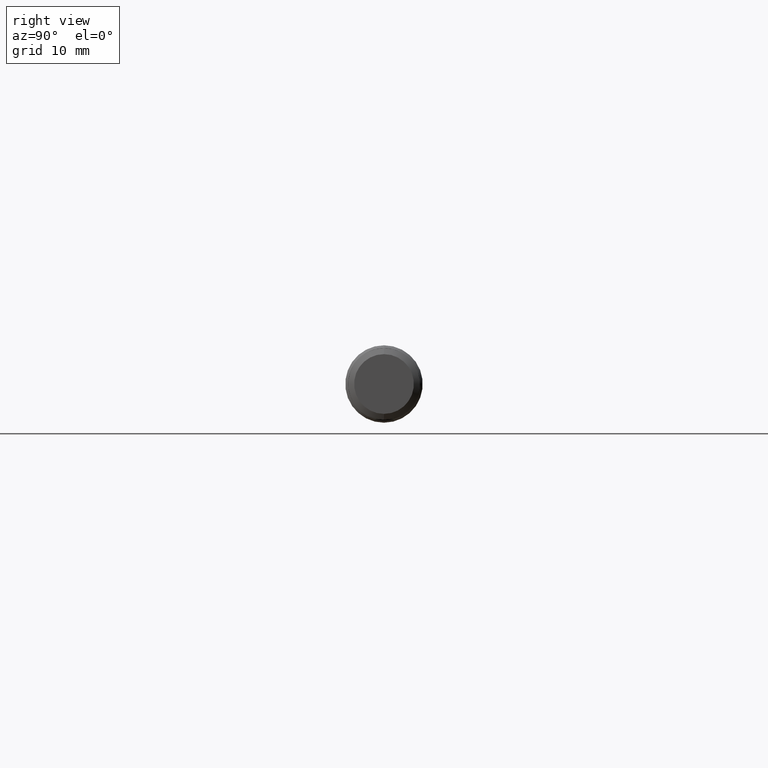
[diagram: clean part render]
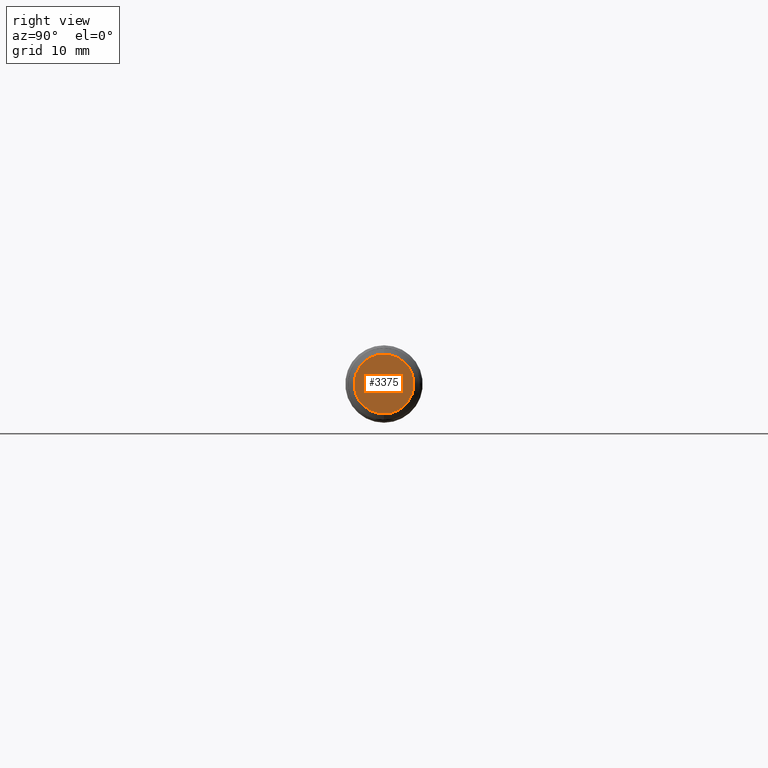
[diagram: same view with one face highlighted and labeled with its STEP entity id]
A machine part, right view. The second image highlights one B-rep face of the part: STEP entity #3375.
In plain terms, the highlighted planar face has unit normal (-1, 0, -0).
Its self-contained STEP definition (entity closure, byte-faithful):
#163 = DIRECTION ( 'NONE',  ( -0.000000000000000000, 0.000000000000000000, 1.000000000000000000 ) ) ;
#325 = DIRECTION ( 'NONE',  ( 0.000000000000000000, 0.000000000000000000, 1.000000000000000000 ) ) ;
#352 = AXIS2_PLACEMENT_3D ( 'NONE', #1128, #2258, #325 ) ;
#548 = EDGE_CURVE ( 'NONE', #1301, #1196, #2731, .T. ) ;
#710 = CIRCLE ( 'NONE', #1467, 0.1445873328586268769 ) ;
#1040 = CARTESIAN_POINT ( 'NONE',  ( 3.500000000000000000, 0.000000000000000000, 0.000000000000000000 ) ) ;
#1120 = FACE_OUTER_BOUND ( 'NONE', #1800, .T. ) ;
#1128 = CARTESIAN_POINT ( 'NONE',  ( 3.500000000000000000, 0.000000000000000000, 0.000000000000000000 ) ) ;
#1183 = AXIS2_PLACEMENT_3D ( 'NONE', #2846, #1740, #163 ) ;
#1196 = VERTEX_POINT ( 'NONE', #2713 ) ;
#1241 = EDGE_CURVE ( 'NONE', #1196, #1301, #710, .T. ) ;
#1301 = VERTEX_POINT ( 'NONE', #2469 ) ;
#1467 = AXIS2_PLACEMENT_3D ( 'NONE', #1040, #1530, #2157 ) ;
#1530 = DIRECTION ( 'NONE',  ( -1.000000000000000000, -0.000000000000000000, -0.000000000000000000 ) ) ;
#1740 = DIRECTION ( 'NONE',  ( -1.000000000000000000, 0.000000000000000000, -0.000000000000000000 ) ) ;
#1800 = EDGE_LOOP ( 'NONE', ( #2961, #3153 ) ) ;
#2157 = DIRECTION ( 'NONE',  ( 0.000000000000000000, 0.000000000000000000, 1.000000000000000000 ) ) ;
#2258 = DIRECTION ( 'NONE',  ( -1.000000000000000000, -0.000000000000000000, -0.000000000000000000 ) ) ;
#2469 = CARTESIAN_POINT ( 'NONE',  ( 3.500000000000000000, 1.770684143825703349E-17, -0.1445873328586268769 ) ) ;
#2713 = CARTESIAN_POINT ( 'NONE',  ( 3.500000000000000000, 0.000000000000000000, 0.1445873328586268769 ) ) ;
#2731 = CIRCLE ( 'NONE', #352, 0.1445873328586268769 ) ;
#2846 = CARTESIAN_POINT ( 'NONE',  ( 3.500000000000000000, 0.1754999999999999893, 0.000000000000000000 ) ) ;
#2961 = ORIENTED_EDGE ( 'NONE', *, *, #1241, .F. ) ;
#3128 = PLANE ( 'NONE',  #1183 ) ;
#3153 = ORIENTED_EDGE ( 'NONE', *, *, #548, .F. ) ;
#3375 = ADVANCED_FACE ( 'NONE', ( #1120 ), #3128, .F. ) ;